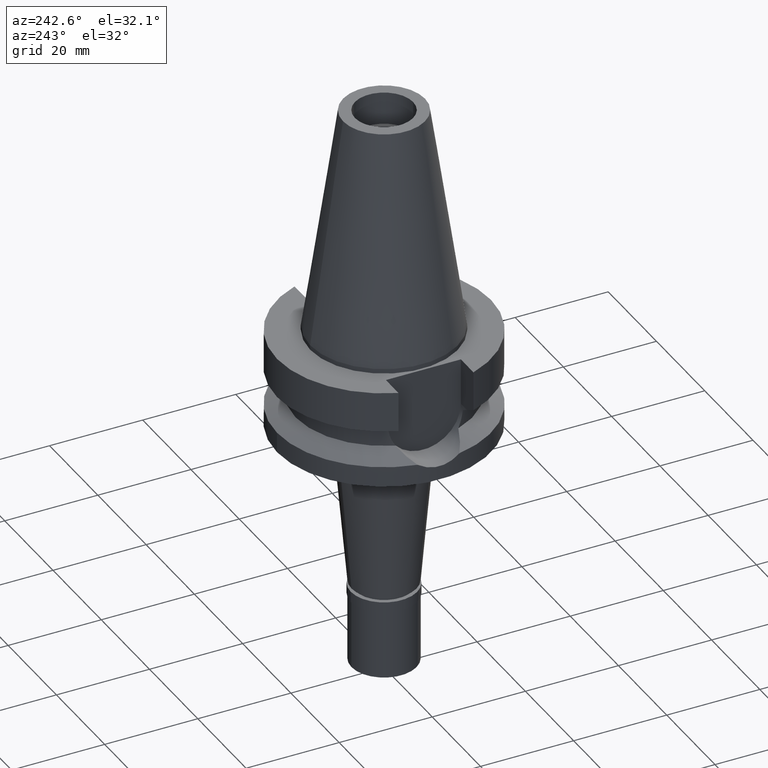
[diagram: clean part render]
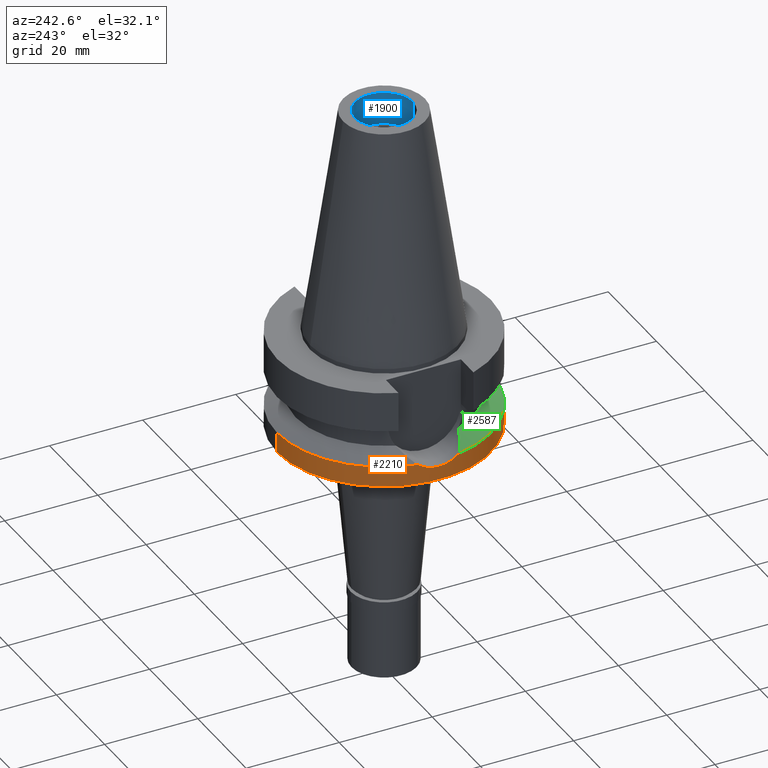
[diagram: same view with three faces highlighted in distinct colors, each labeled with its STEP entity id]
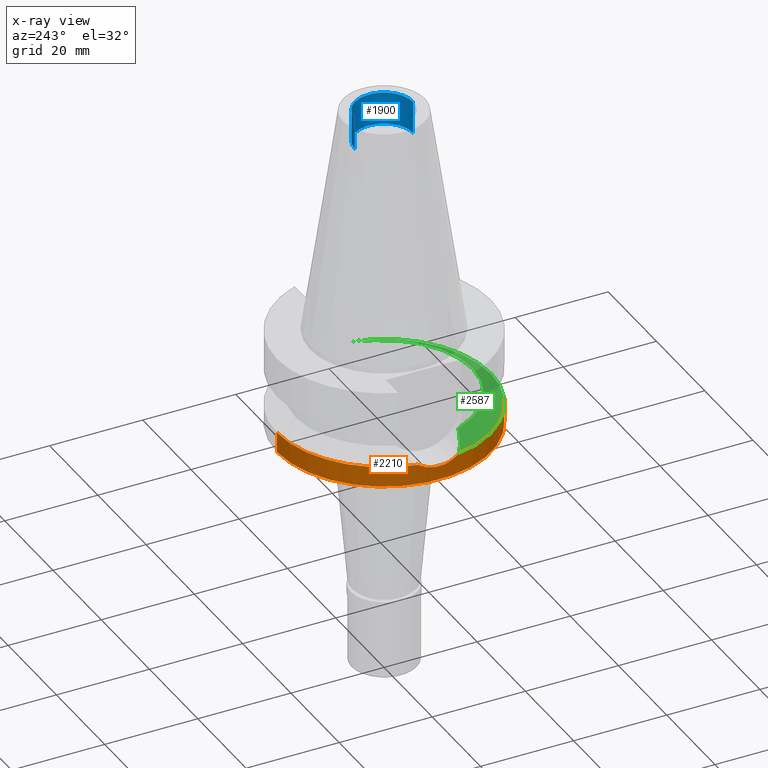
[diagram: x-ray of the same camera — body ghosted, the three highlighted faces saturated]
A machine part, auxiliary view with three faces highlighted in distinct colors.
The next image is the same camera in x-ray (body ghosted, the three faces saturated) — at least one of them is partly hidden behind the body in this view.
Their STEP definitions:

[orange] entity #2210 — the highlighted cylindrical surface (partial cylindrical patch) has radius 23 mm, axis along (0, 0, -1).
#61 = DIRECTION ( 'NONE',  ( 0.0000000000000000000, 0.0000000000000000000, -1.000000000000000000 ) ) ;
#168 = CARTESIAN_POINT ( 'NONE',  ( -22.92452651903377969, -1.864440089618564445, -18.78174785950874792 ) ) ;
#182 = CARTESIAN_POINT ( 'NONE',  ( -22.92290420593997524, 1.923070217381746660, -18.77739314732940912 ) ) ;
#204 = CARTESIAN_POINT ( 'NONE',  ( -22.83547616013984083, 2.746788174353021361, -18.51747442355614837 ) ) ;
#217 = CARTESIAN_POINT ( 'NONE',  ( -22.87476863915909320, 2.398004322038031155, -18.63456771831513592 ) ) ;
#276 = CARTESIAN_POINT ( 'NONE',  ( 0.0000000000000000000, 23.00000000000000000, -22.00000000000000000 ) ) ;
#357 = CARTESIAN_POINT ( 'NONE',  ( -22.55786346208000026, 4.488072640470000430, -17.63279163029000074 ) ) ;
#435 = CARTESIAN_POINT ( 'NONE',  ( 0.0000000000000000000, 1.022848384030000006E-14, -17.63279163029000074 ) ) ;
#437 = CARTESIAN_POINT ( 'NONE',  ( -22.80216122447273719, 3.013364605834145671, -18.41714078185713177 ) ) ;
#460 = CARTESIAN_POINT ( 'NONE',  ( -22.91242513727506491, -2.010000392821884585, -18.74615227866989287 ) ) ;
#502 = LINE ( 'NONE', #1330, #1892 ) ;
#569 = CARTESIAN_POINT ( 'NONE',  ( -22.69605003534154974, 3.742246044120739690, -18.08863916496858693 ) ) ;
#576 = DIRECTION ( 'NONE',  ( -0.9807766722643714852, 0.1951335930638943839, 0.0000000000000000000 ) ) ;
#649 = CARTESIAN_POINT ( 'NONE',  ( -22.88222545004020958, -2.325754591111402370, -18.65674056899072397 ) ) ;
#675 = VERTEX_POINT ( 'NONE', #2373 ) ;
#677 = CARTESIAN_POINT ( 'NONE',  ( -22.88481372749445697, -2.300171923778429495, -18.66442433885399410 ) ) ;
#695 = CARTESIAN_POINT ( 'NONE',  ( -22.99958106116195822, -0.4076252345255417242, -18.99876958054490572 ) ) ;
#699 = DIRECTION ( 'NONE',  ( 0.0000000000000000000, 0.0000000000000000000, 1.000000000000000000 ) ) ;
#700 = ORIENTED_EDGE ( 'NONE', *, *, #2496, .T. ) ;
#718 = DIRECTION ( 'NONE',  ( 0.0000000000000000000, 0.0000000000000000000, -1.000000000000000000 ) ) ;
#720 = ORIENTED_EDGE ( 'NONE', *, *, #2143, .F. ) ;
#773 = CARTESIAN_POINT ( 'NONE',  ( 0.0000000000000000000, -23.00000000000000000, -22.00000000000000000 ) ) ;
#813 = EDGE_CURVE ( 'NONE', #2720, #2280, #2204, .T. ) ;
#858 = CARTESIAN_POINT ( 'NONE',  ( -22.70350920478827206, -3.756030839709219027, -18.12442102103422670 ) ) ;
#891 = CARTESIAN_POINT ( 'NONE',  ( -22.85120837650806891, 2.614614927687083590, -18.56452983979844618 ) ) ;
#901 = ORIENTED_EDGE ( 'NONE', *, *, #2227, .T. ) ;
#917 = DIRECTION ( 'NONE',  ( 0.0000000000000000000, -2.603192430893000129E-14, -1.000000000000000000 ) ) ;
#942 = DIRECTION ( 'NONE',  ( 0.0000000000000000000, -1.000000000000000000, 0.0000000000000000000 ) ) ;
#974 = CARTESIAN_POINT ( 'NONE',  ( 0.0000000000000000000, -23.00000000000000000, -17.63279163029000074 ) ) ;
#990 = VECTOR ( 'NONE', #1302, 1000.000000000000000 ) ;
#1093 = CARTESIAN_POINT ( 'NONE',  ( -22.81090950435394404, -3.020660139587471704, -18.44495556381863821 ) ) ;
#1113 = CARTESIAN_POINT ( 'NONE',  ( -22.55786346208000026, -4.488072640470000430, -17.63279163029000074 ) ) ;
#1136 = CARTESIAN_POINT ( 'NONE',  ( 0.0000000000000000000, 1.890487263844000250E-14, 54.37000000000000455 ) ) ;
#1140 = CARTESIAN_POINT ( 'NONE',  ( -22.95216769459113237, 1.531412477492653190, -18.86284795589137886 ) ) ;
#1172 = DIRECTION ( 'NONE',  ( 0.0000000000000000000, 1.000000000000000000, 0.0000000000000000000 ) ) ;
#1302 = DIRECTION ( 'NONE',  ( 0.0000000000000000000, 2.277793377031000010E-14, -1.000000000000000000 ) ) ;
#1305 = CARTESIAN_POINT ( 'NONE',  ( -22.99091311577711849, 0.7497282923053413262, -18.97473017845406318 ) ) ;
#1330 = CARTESIAN_POINT ( 'NONE',  ( 0.0000000000000000000, 23.00000000000000000, -17.63279163029000074 ) ) ;
#1337 = ORIENTED_EDGE ( 'NONE', *, *, #813, .F. ) ;
#1518 = LINE ( 'NONE', #2436, #990 ) ;
#1537 = CARTESIAN_POINT ( 'NONE',  ( -22.89669828391551931, -2.179393510309175497, -18.69965599749197338 ) ) ;
#1587 = CARTESIAN_POINT ( 'NONE',  ( -22.55786346208000026, 4.488072640470000430, -17.63279163029000074 ) ) ;
#1675 = CARTESIAN_POINT ( 'NONE',  ( 0.0000000000000000000, 1.022848384030000006E-14, -17.63279163029000074 ) ) ;
#1737 = AXIS2_PLACEMENT_3D ( 'NONE', #1136, #718, #2704 ) ;
#1749 = EDGE_LOOP ( 'NONE', ( #700, #1826, #1769, #720, #901, #1337 ) ) ;
#1763 = CARTESIAN_POINT ( 'NONE',  ( -22.88961350933834282, -2.251877145755545762, -18.67865985014641694 ) ) ;
#1769 = ORIENTED_EDGE ( 'NONE', *, *, #2816, .T. ) ;
#1787 = AXIS2_PLACEMENT_3D ( 'NONE', #435, #2736, #942 ) ;
#1789 = AXIS2_PLACEMENT_3D ( 'NONE', #1675, #61, #576 ) ;
#1792 = CARTESIAN_POINT ( 'NONE',  ( -23.00039156857208766, 0.3574856675919257376, -19.00115234547163467 ) ) ;
#1808 = FACE_OUTER_BOUND ( 'NONE', #1749, .T. ) ;
#1819 = CYLINDRICAL_SURFACE ( 'NONE', #1737, 23.00000000000000000 ) ;
#1826 = ORIENTED_EDGE ( 'NONE', *, *, #2251, .T. ) ;
#1892 = VECTOR ( 'NONE', #917, 1000.000000000000000 ) ;
#1992 = CIRCLE ( 'NONE', #2043, 23.00000000000000000 ) ;
#2017 = CARTESIAN_POINT ( 'NONE',  ( -22.87924166839408713, 2.355031409893385330, -18.64784598470895816 ) ) ;
#2028 = CARTESIAN_POINT ( 'NONE',  ( -22.55786346208000026, -4.488072640470000430, -17.63279163029000074 ) ) ;
#2043 = AXIS2_PLACEMENT_3D ( 'NONE', #2069, #699, #1172 ) ;
#2046 = CARTESIAN_POINT ( 'NONE',  ( -22.77748393012053185, 3.194066890448931773, -18.34195206592467287 ) ) ;
#2069 = CARTESIAN_POINT ( 'NONE',  ( 0.0000000000000000000, 1.890487263844000250E-14, -22.00000000000000000 ) ) ;
#2143 = EDGE_CURVE ( 'NONE', #2402, #2414, #1518, .T. ) ;
#2204 = B_SPLINE_CURVE_WITH_KNOTS ( 'NONE', 3,
 ( #357, #2595, #569, #2046, #437, #204, #891, #2944, #217, #2017, #2692, #182, #1140, #1305, #1792, #695, #2208, #2452, #2706, #168, #460, #1537, #1763, #677, #649, #1093, #858, #2028 ),
 .UNSPECIFIED., .F., .F.,
 ( 4, 2, 2, 1, 1, 2, 2, 2, 2, 2, 2, 1, 1, 2, 2, 4 ),
 ( 0.0000000000000000000, 0.1250000000000022482, 0.1875000000000034694, 0.2187500000000038858, 0.2343750000000039135, 0.2421875000000038580, 0.2500000000000037748, 0.3750000000000040523, 0.5000000000000043299, 0.6250000000000046629, 0.6875000000000047740, 0.7187500000000046629, 0.7343750000000045519, 0.7421875000000045519, 0.7500000000000045519, 1.000000000000000000 ),
 .UNSPECIFIED. ) ;
#2208 = CARTESIAN_POINT ( 'NONE',  ( -22.98937116202566244, -0.7953693436808086936, -18.97024549782366165 ) ) ;
#2210 = ADVANCED_FACE ( 'NONE', ( #1808 ), #1819, .T. ) ;
#2227 = EDGE_CURVE ( 'NONE', #2402, #2280, #2419, .T. ) ;
#2251 = EDGE_CURVE ( 'NONE', #675, #2358, #502, .T. ) ;
#2280 = VERTEX_POINT ( 'NONE', #1113 ) ;
#2358 = VERTEX_POINT ( 'NONE', #276 ) ;
#2373 = CARTESIAN_POINT ( 'NONE',  ( 0.0000000000000000000, 23.00000000000000000, -17.63279163029000074 ) ) ;
#2402 = VERTEX_POINT ( 'NONE', #974 ) ;
#2414 = VERTEX_POINT ( 'NONE', #773 ) ;
#2419 = CIRCLE ( 'NONE', #1787, 23.00000000000000000 ) ;
#2436 = CARTESIAN_POINT ( 'NONE',  ( 0.0000000000000000000, -23.00000000000000000, -17.63279163029000074 ) ) ;
#2452 = CARTESIAN_POINT ( 'NONE',  ( -22.95934934517439885, -1.378459520358430002, -18.88353401141572974 ) ) ;
#2475 = CIRCLE ( 'NONE', #1789, 23.00000000000001066 ) ;
#2496 = EDGE_CURVE ( 'NONE', #2720, #675, #2475, .T. ) ;
#2595 = CARTESIAN_POINT ( 'NONE',  ( -22.63189142319237135, 4.115994741375768484, -17.88267412422783309 ) ) ;
#2692 = CARTESIAN_POINT ( 'NONE',  ( -22.88130279756130037, 2.334968719025843242, -18.65396397036829157 ) ) ;
#2704 = DIRECTION ( 'NONE',  ( 0.0000000000000000000, -1.000000000000000000, 0.0000000000000000000 ) ) ;
#2706 = CARTESIAN_POINT ( 'NONE',  ( -22.94689091153282234, -1.573058889628687673, -18.84731797894366778 ) ) ;
#2720 = VERTEX_POINT ( 'NONE', #1587 ) ;
#2736 = DIRECTION ( 'NONE',  ( 0.0000000000000000000, 0.0000000000000000000, -1.000000000000000000 ) ) ;
#2816 = EDGE_CURVE ( 'NONE', #2358, #2414, #1992, .T. ) ;
#2944 = CARTESIAN_POINT ( 'NONE',  ( -22.86794343887343217, 2.462635580295535753, -18.61430130012453787 ) ) ;

[blue] entity #1900 — the highlighted cylindrical surface (edge-blend (fillet) strip) has radius 6.25 mm, axis along (0, 0, -1).
#38 = DIRECTION ( 'NONE',  ( 0.0000000000000000000, -1.000000000000000000, 0.0000000000000000000 ) ) ;
#76 = DIRECTION ( 'NONE',  ( 0.0000000000000000000, 0.0000000000000000000, 1.000000000000000000 ) ) ;
#162 = CARTESIAN_POINT ( 'NONE',  ( 0.0000000000000000000, 6.250000000000000000, 41.39999999999999858 ) ) ;
#245 = DIRECTION ( 'NONE',  ( 0.0000000000000000000, 0.0000000000000000000, 1.000000000000000000 ) ) ;
#308 = DIRECTION ( 'NONE',  ( 0.0000000000000000000, 0.0000000000000000000, -1.000000000000000000 ) ) ;
#381 = AXIS2_PLACEMENT_3D ( 'NONE', #2838, #1016, #2793 ) ;
#399 = LINE ( 'NONE', #660, #1945 ) ;
#543 = DIRECTION ( 'NONE',  ( 0.0000000000000000000, 0.0000000000000000000, 1.000000000000000000 ) ) ;
#566 = CARTESIAN_POINT ( 'NONE',  ( 0.0000000000000000000, -6.250000000000000000, 41.39999999999999858 ) ) ;
#660 = CARTESIAN_POINT ( 'NONE',  ( 0.0000000000000000000, 6.250000000000000000, 41.39999999999999858 ) ) ;
#789 = ORIENTED_EDGE ( 'NONE', *, *, #1160, .F. ) ;
#959 = ORIENTED_EDGE ( 'NONE', *, *, #1027, .T. ) ;
#1016 = DIRECTION ( 'NONE',  ( 0.0000000000000000000, 0.0000000000000000000, -1.000000000000000000 ) ) ;
#1027 = EDGE_CURVE ( 'NONE', #2363, #1809, #1406, .T. ) ;
#1160 = EDGE_CURVE ( 'NONE', #2654, #1374, #399, .T. ) ;
#1200 = CIRCLE ( 'NONE', #1389, 6.250000000000000000 ) ;
#1210 = DIRECTION ( 'NONE',  ( 0.0000000000000000000, -1.000000000000000000, 0.0000000000000000000 ) ) ;
#1374 = VERTEX_POINT ( 'NONE', #1385 ) ;
#1385 = CARTESIAN_POINT ( 'NONE',  ( 0.0000000000000000000, 6.250000000000000000, 48.39999999999999858 ) ) ;
#1389 = AXIS2_PLACEMENT_3D ( 'NONE', #1882, #543, #38 ) ;
#1406 = LINE ( 'NONE', #2087, #1568 ) ;
#1429 = FACE_OUTER_BOUND ( 'NONE', #2294, .T. ) ;
#1493 = EDGE_CURVE ( 'NONE', #1809, #1374, #1200, .T. ) ;
#1536 = ORIENTED_EDGE ( 'NONE', *, *, #1493, .T. ) ;
#1568 = VECTOR ( 'NONE', #245, 1000.000000000000000 ) ;
#1809 = VERTEX_POINT ( 'NONE', #2137 ) ;
#1882 = CARTESIAN_POINT ( 'NONE',  ( 0.0000000000000000000, 1.890487263844000250E-14, 48.39999999999999858 ) ) ;
#1900 = ADVANCED_FACE ( 'NONE', ( #1429 ), #2343, .F. ) ;
#1945 = VECTOR ( 'NONE', #76, 1000.000000000000000 ) ;
#2087 = CARTESIAN_POINT ( 'NONE',  ( 0.0000000000000000000, -6.250000000000000000, 41.39999999999999858 ) ) ;
#2137 = CARTESIAN_POINT ( 'NONE',  ( 0.0000000000000000000, -6.250000000000000000, 48.39999999999999858 ) ) ;
#2294 = EDGE_LOOP ( 'NONE', ( #2684, #959, #1536, #789 ) ) ;
#2343 = CYLINDRICAL_SURFACE ( 'NONE', #2367, 6.250000000000000000 ) ;
#2363 = VERTEX_POINT ( 'NONE', #566 ) ;
#2367 = AXIS2_PLACEMENT_3D ( 'NONE', #2823, #308, #1210 ) ;
#2411 = EDGE_CURVE ( 'NONE', #2654, #2363, #2616, .T. ) ;
#2616 = CIRCLE ( 'NONE', #381, 6.250000000000000000 ) ;
#2654 = VERTEX_POINT ( 'NONE', #162 ) ;
#2684 = ORIENTED_EDGE ( 'NONE', *, *, #2411, .T. ) ;
#2793 = DIRECTION ( 'NONE',  ( 0.0000000000000000000, 1.000000000000000000, 0.0000000000000000000 ) ) ;
#2823 = CARTESIAN_POINT ( 'NONE',  ( 0.0000000000000000000, 1.890487263844000250E-14, 54.37000000000000455 ) ) ;
#2838 = CARTESIAN_POINT ( 'NONE',  ( 0.0000000000000000000, 1.890487263844000250E-14, 41.39999999999999858 ) ) ;

[green] entity #2587 — the highlighted conical surface has half-angle 60 deg.
#378 = EDGE_CURVE ( 'NONE', #1698, #2402, #2915, .T. ) ;
#435 = CARTESIAN_POINT ( 'NONE',  ( 0.0000000000000000000, 1.022848384030000006E-14, -17.63279163029000074 ) ) ;
#471 = CARTESIAN_POINT ( 'NONE',  ( 0.0000000000000000000, 1.022848384030000006E-14, -15.32339055352999857 ) ) ;
#474 = VERTEX_POINT ( 'NONE', #697 ) ;
#477 = CARTESIAN_POINT ( 'NONE',  ( 0.0000000000000000000, 1.022848384030000006E-14, -17.63279163029000074 ) ) ;
#697 = CARTESIAN_POINT ( 'NONE',  ( -17.75736593456000278, -6.758398853743999624, -15.32339055352999857 ) ) ;
#752 = EDGE_CURVE ( 'NONE', #2280, #474, #2454, .T. ) ;
#755 = CARTESIAN_POINT ( 'NONE',  ( 22.55786346208000026, -4.488072640470000430, -17.63279163029000074 ) ) ;
#802 = CARTESIAN_POINT ( 'NONE',  ( -19.77328210346744086, -6.137069160762602671, -16.28355951933531287 ) ) ;
#942 = DIRECTION ( 'NONE',  ( 0.0000000000000000000, -1.000000000000000000, 0.0000000000000000000 ) ) ;
#946 = CIRCLE ( 'NONE', #1037, 19.00000000000000000 ) ;
#974 = CARTESIAN_POINT ( 'NONE',  ( 0.0000000000000000000, -23.00000000000000000, -17.63279163029000074 ) ) ;
#1006 = CARTESIAN_POINT ( 'NONE',  ( -21.37344794597410669, -5.343258989421925342, -17.05846002344431156 ) ) ;
#1019 = CARTESIAN_POINT ( 'NONE',  ( -22.55786346208000026, -4.488072640470000430, -17.63279163029000074 ) ) ;
#1037 = AXIS2_PLACEMENT_3D ( 'NONE', #471, #2748, #1373 ) ;
#1113 = CARTESIAN_POINT ( 'NONE',  ( -22.55786346208000026, -4.488072640470000430, -17.63279163029000074 ) ) ;
#1307 = DIRECTION ( 'NONE',  ( 0.0000000000000000000, 0.0000000000000000000, -1.000000000000000000 ) ) ;
#1329 = CONICAL_SURFACE ( 'NONE', #2526, 21.00000000000000000, 1.047197551196400456 ) ;
#1362 = B_SPLINE_CURVE_WITH_KNOTS ( 'NONE', 3,
 ( #2769, #1630, #1800, #755 ),
 .UNSPECIFIED., .F., .F.,
 ( 4, 4 ),
 ( 0.0000000000000000000, 1.000000000000000000 ),
 .UNSPECIFIED. ) ;
#1373 = DIRECTION ( 'NONE',  ( 0.0000000000000000000, -1.000000000000000000, 0.0000000000000000000 ) ) ;
#1509 = CARTESIAN_POINT ( 'NONE',  ( 0.0000000000000000000, 1.022848384030000006E-14, -16.47809109191000232 ) ) ;
#1552 = DIRECTION ( 'NONE',  ( 0.9807766722643714852, -0.1951335930638943839, 0.0000000000000000000 ) ) ;
#1630 = CARTESIAN_POINT ( 'NONE',  ( 19.77328210359873850, -6.137069160708073845, -16.28355951941961166 ) ) ;
#1698 = VERTEX_POINT ( 'NONE', #2098 ) ;
#1787 = AXIS2_PLACEMENT_3D ( 'NONE', #435, #2736, #942 ) ;
#1800 = CARTESIAN_POINT ( 'NONE',  ( 21.37344794610540433, -5.343258989338586673, -17.05846002350029522 ) ) ;
#1946 = CARTESIAN_POINT ( 'NONE',  ( -17.75736593456000278, -6.758398853743999624, -15.32339055352999857 ) ) ;
#1987 = DIRECTION ( 'NONE',  ( 0.0000000000000000000, -1.000000000000000000, 0.0000000000000000000 ) ) ;
#1988 = ORIENTED_EDGE ( 'NONE', *, *, #2185, .F. ) ;
#2098 = CARTESIAN_POINT ( 'NONE',  ( 22.55786346208000026, -4.488072640470000430, -17.63279163029000074 ) ) ;
#2119 = ORIENTED_EDGE ( 'NONE', *, *, #378, .F. ) ;
#2185 = EDGE_CURVE ( 'NONE', #474, #2486, #946, .T. ) ;
#2193 = AXIS2_PLACEMENT_3D ( 'NONE', #477, #1307, #1552 ) ;
#2227 = EDGE_CURVE ( 'NONE', #2402, #2280, #2419, .T. ) ;
#2266 = ORIENTED_EDGE ( 'NONE', *, *, #2837, .F. ) ;
#2280 = VERTEX_POINT ( 'NONE', #1113 ) ;
#2402 = VERTEX_POINT ( 'NONE', #974 ) ;
#2419 = CIRCLE ( 'NONE', #1787, 23.00000000000000000 ) ;
#2427 = FACE_OUTER_BOUND ( 'NONE', #2825, .T. ) ;
#2454 = B_SPLINE_CURVE_WITH_KNOTS ( 'NONE', 3,
 ( #1019, #1006, #802, #1946 ),
 .UNSPECIFIED., .F., .F.,
 ( 4, 4 ),
 ( 0.0000000000000000000, 1.000000000000000000 ),
 .UNSPECIFIED. ) ;
#2486 = VERTEX_POINT ( 'NONE', #2779 ) ;
#2526 = AXIS2_PLACEMENT_3D ( 'NONE', #1509, #2888, #1987 ) ;
#2587 = ADVANCED_FACE ( 'NONE', ( #2427 ), #1329, .T. ) ;
#2736 = DIRECTION ( 'NONE',  ( 0.0000000000000000000, 0.0000000000000000000, -1.000000000000000000 ) ) ;
#2748 = DIRECTION ( 'NONE',  ( 0.0000000000000000000, 0.0000000000000000000, 1.000000000000000000 ) ) ;
#2769 = CARTESIAN_POINT ( 'NONE',  ( 17.75736593456000278, -6.758398853743999624, -15.32339055352999857 ) ) ;
#2779 = CARTESIAN_POINT ( 'NONE',  ( 17.75736593456000278, -6.758398853743999624, -15.32339055352999857 ) ) ;
#2825 = EDGE_LOOP ( 'NONE', ( #2893, #2119, #2266, #1988, #2925 ) ) ;
#2837 = EDGE_CURVE ( 'NONE', #2486, #1698, #1362, .T. ) ;
#2888 = DIRECTION ( 'NONE',  ( 0.0000000000000000000, 0.0000000000000000000, -1.000000000000000000 ) ) ;
#2893 = ORIENTED_EDGE ( 'NONE', *, *, #2227, .F. ) ;
#2915 = CIRCLE ( 'NONE', #2193, 23.00000000000001066 ) ;
#2925 = ORIENTED_EDGE ( 'NONE', *, *, #752, .F. ) ;